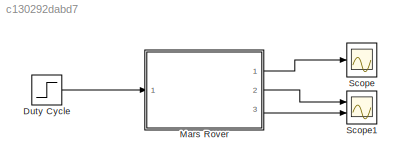
MODEL slx_c130292dabd7
KIND model
CONFIG AbsTol = auto
CONFIG EnableMultiTasking = off
CONFIG FixedStep = auto
CONFIG MaxStep = auto
CONFIG MinStep = auto
CONFIG RelTol = 1e-3
CONFIG SampleTimeConstraint = Unconstrained
CONFIG SolverName = VariableStepAuto
CONFIG StartTime = 0.0
CONFIG StopTime = 10
BLOCK [Step] Duty Cycle
  After = dutyFinal
  Before = dutyInitial
  SampleTime = 0
  Time = stepTime
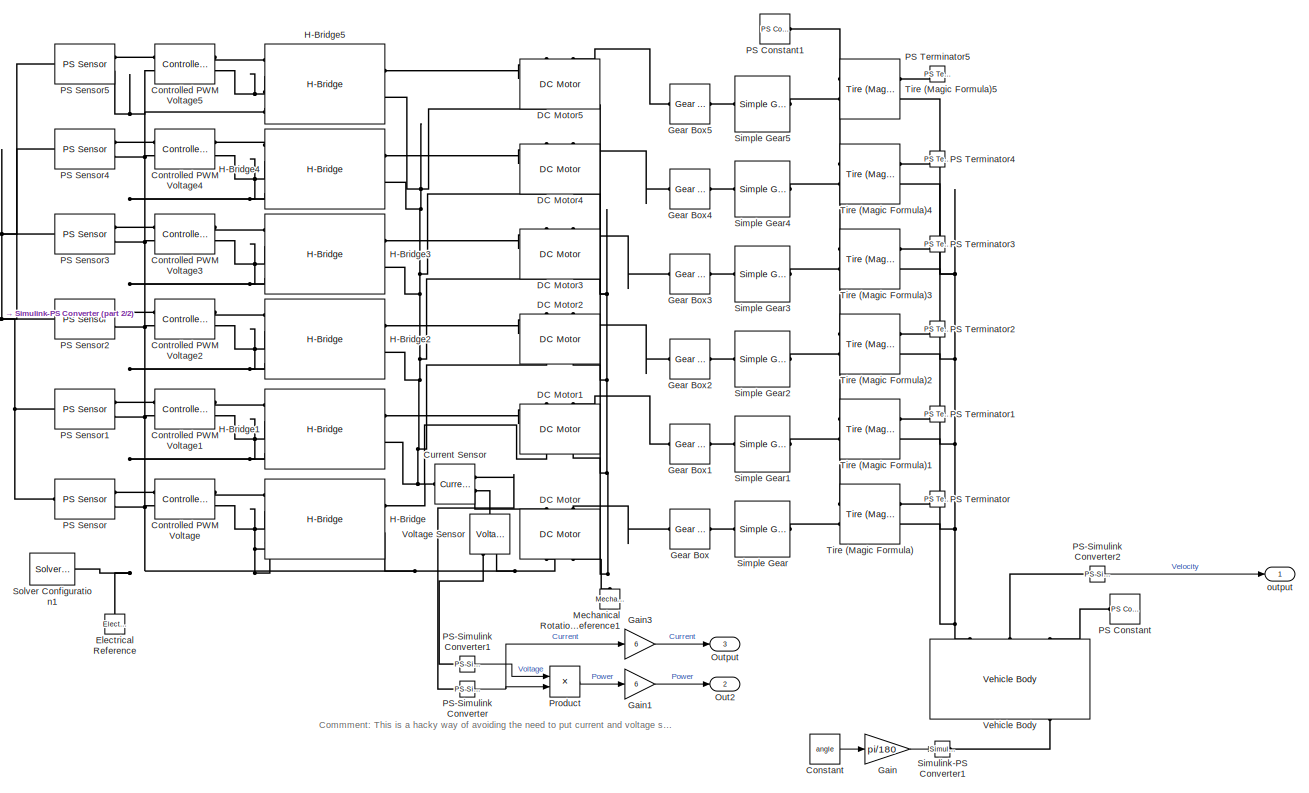
[diagram: Mars Rover - part 1/2, most of the canvas]
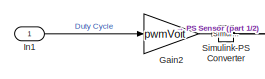
[diagram: Mars Rover - part 2/2, middle left region]
BLOCK [SubSystem] Mars Rover
  Ports = [1, 3]
  RequestExecContextInheritance = off
BLOCK [Constant] Mars Rover/Constant
  Value = angle
BLOCK [Reference] Mars Rover/Controlled PWM Voltage  REF=ee_lib/Integrated Circuits/Controlled PWM
Voltage
  Ports = [0, 0, 0, 0, 0, 2, 2]
  SourceBlock = ee_lib/Integrated Circuits/Controlled PWM\nVoltage
  SourceProductBaseCode = PS
  SourceType = Controlled PWM\nVoltage
BLOCK [Reference] Mars Rover/Controlled PWM Voltage1  REF=ee_lib/Integrated Circuits/Controlled PWM
Voltage
  Ports = [0, 0, 0, 0, 0, 2, 2]
  SourceBlock = ee_lib/Integrated Circuits/Controlled PWM\nVoltage
  SourceProductBaseCode = PS
  SourceType = Controlled PWM\nVoltage
BLOCK [Reference] Mars Rover/Controlled PWM Voltage2  REF=ee_lib/Integrated Circuits/Controlled PWM
Voltage
  Ports = [0, 0, 0, 0, 0, 2, 2]
  SourceBlock = ee_lib/Integrated Circuits/Controlled PWM\nVoltage
  SourceProductBaseCode = PS
  SourceType = Controlled PWM\nVoltage
BLOCK [Reference] Mars Rover/Controlled PWM Voltage3  REF=ee_lib/Integrated Circuits/Controlled PWM
Voltage
  Ports = [0, 0, 0, 0, 0, 2, 2]
  SourceBlock = ee_lib/Integrated Circuits/Controlled PWM\nVoltage
  SourceProductBaseCode = PS
  SourceType = Controlled PWM\nVoltage
BLOCK [Reference] Mars Rover/Controlled PWM Voltage4  REF=ee_lib/Integrated Circuits/Controlled PWM
Voltage
  Ports = [0, 0, 0, 0, 0, 2, 2]
  SourceBlock = ee_lib/Integrated Circuits/Controlled PWM\nVoltage
  SourceProductBaseCode = PS
  SourceType = Controlled PWM\nVoltage
BLOCK [Reference] Mars Rover/Controlled PWM Voltage5  REF=ee_lib/Integrated Circuits/Controlled PWM
Voltage
  Ports = [0, 0, 0, 0, 0, 2, 2]
  SourceBlock = ee_lib/Integrated Circuits/Controlled PWM\nVoltage
  SourceProductBaseCode = PS
  SourceType = Controlled PWM\nVoltage
BLOCK [Reference] Mars Rover/Current Sensor  REF=fl_lib/Electrical/Electrical Sensors/Current Sensor
  Ports = [0, 0, 0, 0, 0, 1, 2]
  SourceBlock = fl_lib/Electrical/Electrical Sensors/Current Sensor
  SourceProductBaseCode = SS
  SourceType = Current Sensor
BLOCK [Reference] Mars Rover/DC Motor  REF=ee_lib/Electromechanical/Brushed Motors/DC Motor
  NameLocation = right
  Ports = [0, 0, 0, 0, 0, 2, 2]
  SourceBlock = ee_lib/Electromechanical/Brushed Motors/DC Motor
  SourceProductBaseCode = PS
  SourceType = DC Motor
BLOCK [Reference] Mars Rover/DC Motor1  REF=ee_lib/Electromechanical/Brushed Motors/DC Motor
  NameLocation = right
  Ports = [0, 0, 0, 0, 0, 2, 2]
  SourceBlock = ee_lib/Electromechanical/Brushed Motors/DC Motor
  SourceProductBaseCode = PS
  SourceType = DC Motor
BLOCK [Reference] Mars Rover/DC Motor2  REF=ee_lib/Electromechanical/Brushed Motors/DC Motor
  NameLocation = right
  Ports = [0, 0, 0, 0, 0, 2, 2]
  SourceBlock = ee_lib/Electromechanical/Brushed Motors/DC Motor
  SourceProductBaseCode = PS
  SourceType = DC Motor
BLOCK [Reference] Mars Rover/DC Motor3  REF=ee_lib/Electromechanical/Brushed Motors/DC Motor
  NameLocation = right
  Ports = [0, 0, 0, 0, 0, 2, 2]
  SourceBlock = ee_lib/Electromechanical/Brushed Motors/DC Motor
  SourceProductBaseCode = PS
  SourceType = DC Motor
BLOCK [Reference] Mars Rover/DC Motor4  REF=ee_lib/Electromechanical/Brushed Motors/DC Motor
  NameLocation = right
  Ports = [0, 0, 0, 0, 0, 2, 2]
  SourceBlock = ee_lib/Electromechanical/Brushed Motors/DC Motor
  SourceProductBaseCode = PS
  SourceType = DC Motor
BLOCK [Reference] Mars Rover/DC Motor5  REF=ee_lib/Electromechanical/Brushed Motors/DC Motor
  NameLocation = right
  Ports = [0, 0, 0, 0, 0, 2, 2]
  SourceBlock = ee_lib/Electromechanical/Brushed Motors/DC Motor
  SourceProductBaseCode = PS
  SourceType = DC Motor
BLOCK [Reference] Mars Rover/Electrical Reference  REF=fl_lib/Electrical/Electrical Elements/Electrical Reference
  NameLocation = right
  Ports = [0, 0, 0, 0, 0, 1]
  SourceBlock = fl_lib/Electrical/Electrical Elements/Electrical Reference
  SourceProductBaseCode = SS
  SourceType = Electrical Reference
BLOCK [Gain] Mars Rover/Gain
  Gain = pi/180
BLOCK [Gain] Mars Rover/Gain1
  Gain = 6
BLOCK [Gain] Mars Rover/Gain2
  Gain = pwmVolt
BLOCK [Gain] Mars Rover/Gain3
  Gain = 6
BLOCK [Reference] Mars Rover/Gear Box  REF=fl_lib/Mechanical/Mechanisms/Gear Box
  Ports = [0, 0, 0, 0, 0, 1, 1]
  SourceBlock = fl_lib/Mechanical/Mechanisms/Gear Box
  SourceProductBaseCode = SS
  SourceType = Gear Box
BLOCK [Reference] Mars Rover/Gear Box1  REF=fl_lib/Mechanical/Mechanisms/Gear Box
  Ports = [0, 0, 0, 0, 0, 1, 1]
  SourceBlock = fl_lib/Mechanical/Mechanisms/Gear Box
  SourceProductBaseCode = SS
  SourceType = Gear Box
BLOCK [Reference] Mars Rover/Gear Box2  REF=fl_lib/Mechanical/Mechanisms/Gear Box
  Ports = [0, 0, 0, 0, 0, 1, 1]
  SourceBlock = fl_lib/Mechanical/Mechanisms/Gear Box
  SourceProductBaseCode = SS
  SourceType = Gear Box
BLOCK [Reference] Mars Rover/Gear Box3  REF=fl_lib/Mechanical/Mechanisms/Gear Box
  Ports = [0, 0, 0, 0, 0, 1, 1]
  SourceBlock = fl_lib/Mechanical/Mechanisms/Gear Box
  SourceProductBaseCode = SS
  SourceType = Gear Box
BLOCK [Reference] Mars Rover/Gear Box4  REF=fl_lib/Mechanical/Mechanisms/Gear Box
  Ports = [0, 0, 0, 0, 0, 1, 1]
  SourceBlock = fl_lib/Mechanical/Mechanisms/Gear Box
  SourceProductBaseCode = SS
  SourceType = Gear Box
BLOCK [Reference] Mars Rover/Gear Box5  REF=fl_lib/Mechanical/Mechanisms/Gear Box
  Ports = [0, 0, 0, 0, 0, 1, 1]
  SourceBlock = fl_lib/Mechanical/Mechanisms/Gear Box
  SourceProductBaseCode = SS
  SourceType = Gear Box
BLOCK [Reference] Mars Rover/H-Bridge  REF=ee_lib/Semiconductors &
Converters/Converters/H-Bridge
  Ports = [0, 0, 0, 0, 0, 4, 2]
  SourceBlock = ee_lib/Semiconductors &\nConverters/Converters/H-Bridge
  SourceProductBaseCode = PS
  SourceType = H-Bridge
BLOCK [Reference] Mars Rover/H-Bridge1  REF=ee_lib/Semiconductors &
Converters/Converters/H-Bridge
  Ports = [0, 0, 0, 0, 0, 4, 2]
  SourceBlock = ee_lib/Semiconductors &\nConverters/Converters/H-Bridge
  SourceProductBaseCode = PS
  SourceType = H-Bridge
BLOCK [Reference] Mars Rover/H-Bridge2  REF=ee_lib/Semiconductors &
Converters/Converters/H-Bridge
  Ports = [0, 0, 0, 0, 0, 4, 2]
  SourceBlock = ee_lib/Semiconductors &\nConverters/Converters/H-Bridge
  SourceProductBaseCode = PS
  SourceType = H-Bridge
BLOCK [Reference] Mars Rover/H-Bridge3  REF=ee_lib/Semiconductors &
Converters/Converters/H-Bridge
  Ports = [0, 0, 0, 0, 0, 4, 2]
  SourceBlock = ee_lib/Semiconductors &\nConverters/Converters/H-Bridge
  SourceProductBaseCode = PS
  SourceType = H-Bridge
BLOCK [Reference] Mars Rover/H-Bridge4  REF=ee_lib/Semiconductors &
Converters/Converters/H-Bridge
  Ports = [0, 0, 0, 0, 0, 4, 2]
  SourceBlock = ee_lib/Semiconductors &\nConverters/Converters/H-Bridge
  SourceProductBaseCode = PS
  SourceType = H-Bridge
BLOCK [Reference] Mars Rover/H-Bridge5  REF=ee_lib/Semiconductors &
Converters/Converters/H-Bridge
  Ports = [0, 0, 0, 0, 0, 4, 2]
  SourceBlock = ee_lib/Semiconductors &\nConverters/Converters/H-Bridge
  SourceProductBaseCode = PS
  SourceType = H-Bridge
BLOCK [Inport] Mars Rover/In1
  IconDisplay = Signal name
BLOCK [Reference] Mars Rover/Mechanical Rotational Reference1  REF=fl_lib/Mechanical/Rotational Elements/Mechanical
Rotational Reference
  NameLocation = right
  Ports = [0, 0, 0, 0, 0, 1]
  SourceBlock = fl_lib/Mechanical/Rotational Elements/Mechanical\nRotational Reference
  SourceProductBaseCode = SS
  SourceType = Mechanical\nRotational Reference
BLOCK [Outport] Mars Rover/Out2
  IconDisplay = Signal name
  Port = 2
BLOCK [Outport] Mars Rover/Output
  IconDisplay = Signal name
  Port = 3
BLOCK [Reference] Mars Rover/PS Constant  REF=fl_lib/Physical Signals/Sources/PS Constant
  Ports = [0, 0, 0, 0, 0, 0, 1]
  SourceBlock = fl_lib/Physical Signals/Sources/PS Constant
  SourceProductBaseCode = SS
  SourceType = PS Constant
BLOCK [Reference] Mars Rover/PS Constant1  REF=fl_lib/Physical Signals/Sources/PS Constant
  Ports = [0, 0, 0, 0, 0, 0, 1]
  SourceBlock = fl_lib/Physical Signals/Sources/PS Constant
  SourceProductBaseCode = SS
  SourceType = PS Constant
BLOCK [Reference] Mars Rover/PS Sensor  REF=ee_lib/Sensors &
Transducers/PS Sensor
  Ports = [0, 0, 0, 0, 0, 1, 2]
  SourceBlock = ee_lib/Sensors &\nTransducers/PS Sensor
  SourceProductBaseCode = PS
  SourceType = PS Sensor
BLOCK [Reference] Mars Rover/PS Sensor1  REF=ee_lib/Sensors &
Transducers/PS Sensor
  Ports = [0, 0, 0, 0, 0, 1, 2]
  SourceBlock = ee_lib/Sensors &\nTransducers/PS Sensor
  SourceProductBaseCode = PS
  SourceType = PS Sensor
BLOCK [Reference] Mars Rover/PS Sensor2  REF=ee_lib/Sensors &
Transducers/PS Sensor
  Ports = [0, 0, 0, 0, 0, 1, 2]
  SourceBlock = ee_lib/Sensors &\nTransducers/PS Sensor
  SourceProductBaseCode = PS
  SourceType = PS Sensor
BLOCK [Reference] Mars Rover/PS Sensor3  REF=ee_lib/Sensors &
Transducers/PS Sensor
  Ports = [0, 0, 0, 0, 0, 1, 2]
  SourceBlock = ee_lib/Sensors &\nTransducers/PS Sensor
  SourceProductBaseCode = PS
  SourceType = PS Sensor
BLOCK [Reference] Mars Rover/PS Sensor4  REF=ee_lib/Sensors &
Transducers/PS Sensor
  Ports = [0, 0, 0, 0, 0, 1, 2]
  SourceBlock = ee_lib/Sensors &\nTransducers/PS Sensor
  SourceProductBaseCode = PS
  SourceType = PS Sensor
BLOCK [Reference] Mars Rover/PS Sensor5  REF=ee_lib/Sensors &
Transducers/PS Sensor
  Ports = [0, 0, 0, 0, 0, 1, 2]
  SourceBlock = ee_lib/Sensors &\nTransducers/PS Sensor
  SourceProductBaseCode = PS
  SourceType = PS Sensor
BLOCK [Reference] Mars Rover/PS Terminator  REF=fl_lib/Physical Signals/Sinks/PS Terminator
  Ports = [0, 0, 0, 0, 0, 1]
  SourceBlock = fl_lib/Physical Signals/Sinks/PS Terminator
  SourceProductBaseCode = SS
  SourceType = PS Terminator
BLOCK [Reference] Mars Rover/PS Terminator1  REF=fl_lib/Physical Signals/Sinks/PS Terminator
  Ports = [0, 0, 0, 0, 0, 1]
  SourceBlock = fl_lib/Physical Signals/Sinks/PS Terminator
  SourceProductBaseCode = SS
  SourceType = PS Terminator
BLOCK [Reference] Mars Rover/PS Terminator2  REF=fl_lib/Physical Signals/Sinks/PS Terminator
  Ports = [0, 0, 0, 0, 0, 1]
  SourceBlock = fl_lib/Physical Signals/Sinks/PS Terminator
  SourceProductBaseCode = SS
  SourceType = PS Terminator
BLOCK [Reference] Mars Rover/PS Terminator3  REF=fl_lib/Physical Signals/Sinks/PS Terminator
  Ports = [0, 0, 0, 0, 0, 1]
  SourceBlock = fl_lib/Physical Signals/Sinks/PS Terminator
  SourceProductBaseCode = SS
  SourceType = PS Terminator
BLOCK [Reference] Mars Rover/PS Terminator4  REF=fl_lib/Physical Signals/Sinks/PS Terminator
  Ports = [0, 0, 0, 0, 0, 1]
  SourceBlock = fl_lib/Physical Signals/Sinks/PS Terminator
  SourceProductBaseCode = SS
  SourceType = PS Terminator
BLOCK [Reference] Mars Rover/PS Terminator5  REF=fl_lib/Physical Signals/Sinks/PS Terminator
  Ports = [0, 0, 0, 0, 0, 1]
  SourceBlock = fl_lib/Physical Signals/Sinks/PS Terminator
  SourceProductBaseCode = SS
  SourceType = PS Terminator
BLOCK [Reference] Mars Rover/PS-Simulink Converter  REF=nesl_utility/PS-Simulink
Converter
  Ports = [0, 1, 0, 0, 0, 1]
  SourceBlock = nesl_utility/PS-Simulink\nConverter
  SourceProductBaseCode = SS
  SourceType = PS-Simulink\nConverter
BLOCK [Reference] Mars Rover/PS-Simulink Converter1  REF=nesl_utility/PS-Simulink
Converter
  Ports = [0, 1, 0, 0, 0, 1]
  SourceBlock = nesl_utility/PS-Simulink\nConverter
  SourceProductBaseCode = SS
  SourceType = PS-Simulink\nConverter
BLOCK [Reference] Mars Rover/PS-Simulink Converter2  REF=nesl_utility/PS-Simulink
Converter
  Ports = [0, 1, 0, 0, 0, 1]
  SourceBlock = nesl_utility/PS-Simulink\nConverter
  SourceProductBaseCode = SS
  SourceType = PS-Simulink\nConverter
BLOCK [Product] Mars Rover/Product
  Ports = [2, 1]
BLOCK [Reference] Mars Rover/Simple Gear  REF=sdl_lib/Gears/Simple Gear
  Ports = [0, 0, 0, 0, 0, 1, 1]
  SourceBlock = sdl_lib/Gears/Simple Gear
  SourceProductBaseCode = LD
  SourceType = Simple Gear
BLOCK [Reference] Mars Rover/Simple Gear1  REF=sdl_lib/Gears/Simple Gear
  Ports = [0, 0, 0, 0, 0, 1, 1]
  SourceBlock = sdl_lib/Gears/Simple Gear
  SourceProductBaseCode = LD
  SourceType = Simple Gear
BLOCK [Reference] Mars Rover/Simple Gear2  REF=sdl_lib/Gears/Simple Gear
  Ports = [0, 0, 0, 0, 0, 1, 1]
  SourceBlock = sdl_lib/Gears/Simple Gear
  SourceProductBaseCode = LD
  SourceType = Simple Gear
BLOCK [Reference] Mars Rover/Simple Gear3  REF=sdl_lib/Gears/Simple Gear
  Ports = [0, 0, 0, 0, 0, 1, 1]
  SourceBlock = sdl_lib/Gears/Simple Gear
  SourceProductBaseCode = LD
  SourceType = Simple Gear
BLOCK [Reference] Mars Rover/Simple Gear4  REF=sdl_lib/Gears/Simple Gear
  Ports = [0, 0, 0, 0, 0, 1, 1]
  SourceBlock = sdl_lib/Gears/Simple Gear
  SourceProductBaseCode = LD
  SourceType = Simple Gear
BLOCK [Reference] Mars Rover/Simple Gear5  REF=sdl_lib/Gears/Simple Gear
  Ports = [0, 0, 0, 0, 0, 1, 1]
  SourceBlock = sdl_lib/Gears/Simple Gear
  SourceProductBaseCode = LD
  SourceType = Simple Gear
BLOCK [Reference] Mars Rover/Simulink-PS Converter  REF=nesl_utility/Simulink-PS
Converter
  Ports = [1, 0, 0, 0, 0, 0, 1]
  SourceBlock = nesl_utility/Simulink-PS\nConverter
  SourceProductBaseCode = SS
  SourceType = Simulink-PS\nConverter
BLOCK [Reference] Mars Rover/Simulink-PS Converter1  REF=nesl_utility/Simulink-PS
Converter
  Ports = [1, 0, 0, 0, 0, 0, 1]
  SourceBlock = nesl_utility/Simulink-PS\nConverter
  SourceProductBaseCode = SS
  SourceType = Simulink-PS\nConverter
BLOCK [Reference] Mars Rover/Solver Configuration1  REF=nesl_utility/Solver
Configuration
  Ports = [0, 0, 0, 0, 0, 0, 1]
  SourceBlock = nesl_utility/Solver\nConfiguration
  SourceProductBaseCode = SS
  SourceType = Solver\nConfiguration
BLOCK [Reference] Mars Rover/Tire (Magic Formula)  REF=sdl_lib/Tires & Vehicles/Tire (Magic Formula)
  Ports = [0, 0, 0, 0, 0, 2, 2]
  SourceBlock = sdl_lib/Tires & Vehicles/Tire (Magic Formula)
  SourceProductBaseCode = LD
  SourceType = Tire (Magic Formula)
BLOCK [Reference] Mars Rover/Tire (Magic Formula)1  REF=sdl_lib/Tires & Vehicles/Tire (Magic Formula)
  Ports = [0, 0, 0, 0, 0, 2, 2]
  SourceBlock = sdl_lib/Tires & Vehicles/Tire (Magic Formula)
  SourceProductBaseCode = LD
  SourceType = Tire (Magic Formula)
BLOCK [Reference] Mars Rover/Tire (Magic Formula)2  REF=sdl_lib/Tires & Vehicles/Tire (Magic Formula)
  Ports = [0, 0, 0, 0, 0, 2, 2]
  SourceBlock = sdl_lib/Tires & Vehicles/Tire (Magic Formula)
  SourceProductBaseCode = LD
  SourceType = Tire (Magic Formula)
BLOCK [Reference] Mars Rover/Tire (Magic Formula)3  REF=sdl_lib/Tires & Vehicles/Tire (Magic Formula)
  Ports = [0, 0, 0, 0, 0, 2, 2]
  SourceBlock = sdl_lib/Tires & Vehicles/Tire (Magic Formula)
  SourceProductBaseCode = LD
  SourceType = Tire (Magic Formula)
BLOCK [Reference] Mars Rover/Tire (Magic Formula)4  REF=sdl_lib/Tires & Vehicles/Tire (Magic Formula)
  Ports = [0, 0, 0, 0, 0, 2, 2]
  SourceBlock = sdl_lib/Tires & Vehicles/Tire (Magic Formula)
  SourceProductBaseCode = LD
  SourceType = Tire (Magic Formula)
BLOCK [Reference] Mars Rover/Tire (Magic Formula)5  REF=sdl_lib/Tires & Vehicles/Tire (Magic Formula)
  Ports = [0, 0, 0, 0, 0, 2, 2]
  SourceBlock = sdl_lib/Tires & Vehicles/Tire (Magic Formula)
  SourceProductBaseCode = LD
  SourceType = Tire (Magic Formula)
BLOCK [Reference] Mars Rover/Vehicle Body  REF=sdl_lib/Tires & Vehicles/Vehicle Body
  NameLocation = right
  Ports = [0, 0, 0, 0, 0, 3, 3]
  SourceBlock = sdl_lib/Tires & Vehicles/Vehicle Body
  SourceProductBaseCode = LD
  SourceType = Vehicle Body
BLOCK [Reference] Mars Rover/Voltage Sensor  REF=fl_lib/Electrical/Electrical Sensors/Voltage Sensor
  NameLocation = right
  Ports = [0, 0, 0, 0, 0, 1, 2]
  SourceBlock = fl_lib/Electrical/Electrical Sensors/Voltage Sensor
  SourceProductBaseCode = SS
  SourceType = Voltage Sensor
BLOCK [Outport] Mars Rover/output
  IconDisplay = Signal name
BLOCK [Scope] Scope
  Floating = off
  NumInputPorts = 1
  Ports = [1]
  ScopeSpecificationString = Simulink.scopes.TimeScopeBlockCfg('CurrentConfiguration', extmgr.ConfigurationSet(extmgr.Configuration('Core','General UI',true),extmgr.Configuration('Core','Source UI',true),extmgr.Configuration('Sources','WiredSimulink',true),extmgr.Configuration('Visuals','Time Domain',true,'SerializedDisplays',{struct('MinYLimReal','-1.0328','MaxYLimReal','9.03381','YLabelReal','','MinYLimMag','0.00000','MaxYL...<+1863ch>
BLOCK [Scope] Scope1
  Floating = off
  NumInputPorts = 2
  Ports = [2]
  ScopeSpecificationString = Simulink.scopes.TimeScopeBlockCfg('CurrentConfiguration', extmgr.ConfigurationSet(extmgr.Configuration('Core','General UI',true),extmgr.Configuration('Core','Source UI',true),extmgr.Configuration('Sources','WiredSimulink',true,'DataLoggingVariableName','ScopeData1'),extmgr.Configuration('Visuals','Time Domain',true),extmgr.Configuration('Tools','Plot Navigation',true),extmgr.Configuration('Tools',...<+40ch>
ANNOTATION Mars Rover: Commment: This is a hacky way of avoiding the need to put current and voltage sensors on every motor. Instead we can just multiply the consumption of one motor by 6 since they are all operating the exact same
LINE Duty Cycle:1 -> Mars Rover:1
LINE Mars Rover/Constant:1 -> Mars Rover/Gain:1
LINE Mars Rover/Gain1:1 -> Mars Rover/Out2:1
LINE Mars Rover/Gain2:1 -> Mars Rover/Simulink-PS Converter:1
LINE Mars Rover/Gain3:1 -> Mars Rover/Output:1
LINE Mars Rover/Gain:1 -> Mars Rover/Simulink-PS Converter1:1
LINE Mars Rover/In1:1 -> Mars Rover/Gain2:1
LINE Mars Rover/PS-Simulink Converter1:1 -> Mars Rover/Product:1
LINE Mars Rover/PS-Simulink Converter2:1 -> Mars Rover/output:1
NET Mars Rover/PS-Simulink Converter:1 -> Mars Rover/Gain3:1, Mars Rover/Product:2
LINE Mars Rover/Product:1 -> Mars Rover/Gain1:1
LINE Mars Rover:1 -> Scope:1
LINE Mars Rover:2 -> Scope1:1
LINE Mars Rover:3 -> Scope1:2
PLINE Mars Rover/Controlled PWM Voltage1:LConn1 -- Mars Rover/PS Sensor1:RConn1
PNET net1: Mars Rover/Controlled PWM Voltage1:LConn2 -- Mars Rover/Controlled PWM Voltage1:RConn2 -- Mars Rover/Controlled PWM Voltage2:LConn2 -- Mars Rover/Controlled PWM Voltage2:RConn2 -- Mars Rover/Controlled PWM Voltage3:LConn2 -- Mars Rover/Controlled PWM Voltage3:RConn2 -- Mars Rover/Controlled PWM Voltage4:LConn2 -- Mars Rover/Controlled PWM Voltage4:RConn2 -- Mars Rover/Controlled PWM Voltage5:LConn2 -- Mars Rover/Controlled PWM Voltage5:RConn2 -- Mars Rover/Controlled PWM Voltage:LConn2 -- Mars Rover/Controlled PWM Voltage:RConn2 -- Mars Rover/DC Motor:RConn1 -- Mars Rover/Electrical Reference:LConn1 -- Mars Rover/H-Bridge1:LConn2 -- Mars Rover/H-Bridge1:LConn3 -- Mars Rover/H-Bridge1:LConn4 -- Mars Rover/H-Bridge2:LConn2 -- Mars Rover/H-Bridge2:LConn3 -- Mars Rover/H-Bridge2:LConn4 -- Mars Rover/H-Bridge3:LConn2 -- Mars Rover/H-Bridge3:LConn3 -- Mars Rover/H-Bridge3:LConn4 -- Mars Rover/H-Bridge4:LConn2 -- Mars Rover/H-Bridge4:LConn3 -- Mars Rover/H-Bridge4:LConn4 -- Mars Rover/H-Bridge5:LConn2 -- Mars Rover/H-Bridge5:LConn3 -- Mars Rover/H-Bridge5:LConn4 -- Mars Rover/H-Bridge:LConn2 -- Mars Rover/H-Bridge:LConn3 -- Mars Rover/H-Bridge:LConn4 -- Mars Rover/H-Bridge:RConn2 -- Mars Rover/PS Sensor1:RConn2 -- Mars Rover/PS Sensor2:RConn2 -- Mars Rover/PS Sensor3:RConn2 -- Mars Rover/PS Sensor4:RConn2 -- Mars Rover/PS Sensor5:RConn2 -- Mars Rover/PS Sensor:RConn2 -- Mars Rover/Solver Configuration1:RConn1 -- Mars Rover/Voltage Sensor:RConn2
PLINE Mars Rover/Controlled PWM Voltage1:RConn1 -- Mars Rover/H-Bridge1:LConn1
PLINE Mars Rover/Controlled PWM Voltage2:LConn1 -- Mars Rover/PS Sensor2:RConn1
PLINE Mars Rover/Controlled PWM Voltage2:RConn1 -- Mars Rover/H-Bridge2:LConn1
PLINE Mars Rover/Controlled PWM Voltage3:LConn1 -- Mars Rover/PS Sensor3:RConn1
PLINE Mars Rover/Controlled PWM Voltage3:RConn1 -- Mars Rover/H-Bridge3:LConn1
PLINE Mars Rover/Controlled PWM Voltage4:LConn1 -- Mars Rover/PS Sensor4:RConn1
PLINE Mars Rover/Controlled PWM Voltage4:RConn1 -- Mars Rover/H-Bridge4:LConn1
PLINE Mars Rover/Controlled PWM Voltage5:LConn1 -- Mars Rover/PS Sensor5:RConn1
PLINE Mars Rover/Controlled PWM Voltage5:RConn1 -- Mars Rover/H-Bridge5:LConn1
PLINE Mars Rover/Controlled PWM Voltage:LConn1 -- Mars Rover/PS Sensor:RConn1
PLINE Mars Rover/Controlled PWM Voltage:RConn1 -- Mars Rover/H-Bridge:LConn1
PNET net2: Mars Rover/Current Sensor:LConn1 -- Mars Rover/DC Motor1:RConn1 -- Mars Rover/DC Motor2:RConn1 -- Mars Rover/DC Motor3:RConn1 -- Mars Rover/DC Motor4:RConn1 -- Mars Rover/DC Motor5:RConn1 -- Mars Rover/H-Bridge1:RConn2 -- Mars Rover/H-Bridge2:RConn2 -- Mars Rover/H-Bridge3:RConn2 -- Mars Rover/H-Bridge4:RConn2 -- Mars Rover/H-Bridge5:RConn2 -- Mars Rover/H-Bridge:RConn1
PLINE Mars Rover/Current Sensor:RConn1 -- Mars Rover/PS-Simulink Converter:LConn1
PNET net3: Mars Rover/Current Sensor:RConn2 -- Mars Rover/DC Motor:LConn1 -- Mars Rover/Voltage Sensor:LConn1
PLINE Mars Rover/DC Motor1:LConn1 -- Mars Rover/H-Bridge1:RConn1
PLINE Mars Rover/DC Motor1:LConn2 -- Mars Rover/Gear Box1:LConn1
PNET net4: Mars Rover/DC Motor1:RConn2 -- Mars Rover/DC Motor2:RConn2 -- Mars Rover/DC Motor3:RConn2 -- Mars Rover/DC Motor4:RConn2 -- Mars Rover/DC Motor5:RConn2 -- Mars Rover/DC Motor:RConn2 -- Mars Rover/Mechanical Rotational Reference1:LConn1
PLINE Mars Rover/DC Motor2:LConn1 -- Mars Rover/H-Bridge2:RConn1
PLINE Mars Rover/DC Motor2:LConn2 -- Mars Rover/Gear Box2:LConn1
PLINE Mars Rover/DC Motor3:LConn1 -- Mars Rover/H-Bridge3:RConn1
PLINE Mars Rover/DC Motor3:LConn2 -- Mars Rover/Gear Box3:LConn1
PLINE Mars Rover/DC Motor4:LConn1 -- Mars Rover/H-Bridge4:RConn1
PLINE Mars Rover/DC Motor4:LConn2 -- Mars Rover/Gear Box4:LConn1
PLINE Mars Rover/DC Motor5:LConn1 -- Mars Rover/H-Bridge5:RConn1
PLINE Mars Rover/DC Motor5:LConn2 -- Mars Rover/Gear Box5:LConn1
PLINE Mars Rover/DC Motor:LConn2 -- Mars Rover/Gear Box:LConn1
PLINE Mars Rover/Gear Box1:RConn1 -- Mars Rover/Simple Gear1:LConn1
PLINE Mars Rover/Gear Box2:RConn1 -- Mars Rover/Simple Gear2:LConn1
PLINE Mars Rover/Gear Box3:RConn1 -- Mars Rover/Simple Gear3:LConn1
PLINE Mars Rover/Gear Box4:RConn1 -- Mars Rover/Simple Gear4:LConn1
PLINE Mars Rover/Gear Box5:RConn1 -- Mars Rover/Simple Gear5:LConn1
PLINE Mars Rover/Gear Box:RConn1 -- Mars Rover/Simple Gear:LConn1
PNET net5: Mars Rover/PS Constant1:RConn1 -- Mars Rover/Tire (Magic Formula)1:LConn1 -- Mars Rover/Tire (Magic Formula)2:LConn1 -- Mars Rover/Tire (Magic Formula)3:LConn1 -- Mars Rover/Tire (Magic Formula)4:LConn1 -- Mars Rover/Tire (Magic Formula)5:LConn1 -- Mars Rover/Tire (Magic Formula):LConn1
PLINE Mars Rover/PS Constant:RConn1 -- Mars Rover/Vehicle Body:LConn3
PNET net6: Mars Rover/PS Sensor1:LConn1 -- Mars Rover/PS Sensor2:LConn1 -- Mars Rover/PS Sensor3:LConn1 -- Mars Rover/PS Sensor4:LConn1 -- Mars Rover/PS Sensor5:LConn1 -- Mars Rover/PS Sensor:LConn1 -- Mars Rover/Simulink-PS Converter:RConn1
PLINE Mars Rover/PS Terminator1:LConn1 -- Mars Rover/Tire (Magic Formula)1:RConn1
PLINE Mars Rover/PS Terminator2:LConn1 -- Mars Rover/Tire (Magic Formula)2:RConn1
PLINE Mars Rover/PS Terminator3:LConn1 -- Mars Rover/Tire (Magic Formula)3:RConn1
PLINE Mars Rover/PS Terminator4:LConn1 -- Mars Rover/Tire (Magic Formula)4:RConn1
PLINE Mars Rover/PS Terminator5:LConn1 -- Mars Rover/Tire (Magic Formula)5:RConn1
PLINE Mars Rover/PS Terminator:LConn1 -- Mars Rover/Tire (Magic Formula):RConn1
PLINE Mars Rover/PS-Simulink Converter1:LConn1 -- Mars Rover/Voltage Sensor:RConn1
PLINE Mars Rover/PS-Simulink Converter2:LConn1 -- Mars Rover/Vehicle Body:LConn2
PLINE Mars Rover/Simple Gear1:RConn1 -- Mars Rover/Tire (Magic Formula)1:LConn2
PLINE Mars Rover/Simple Gear2:RConn1 -- Mars Rover/Tire (Magic Formula)2:LConn2
PLINE Mars Rover/Simple Gear3:RConn1 -- Mars Rover/Tire (Magic Formula)3:LConn2
PLINE Mars Rover/Simple Gear4:RConn1 -- Mars Rover/Tire (Magic Formula)4:LConn2
PLINE Mars Rover/Simple Gear5:RConn1 -- Mars Rover/Tire (Magic Formula)5:LConn2
PLINE Mars Rover/Simple Gear:RConn1 -- Mars Rover/Tire (Magic Formula):LConn2
PLINE Mars Rover/Simulink-PS Converter1:RConn1 -- Mars Rover/Vehicle Body:RConn3
PNET net7: Mars Rover/Tire (Magic Formula)1:RConn2 -- Mars Rover/Tire (Magic Formula)2:RConn2 -- Mars Rover/Tire (Magic Formula)3:RConn2 -- Mars Rover/Tire (Magic Formula)4:RConn2 -- Mars Rover/Tire (Magic Formula)5:RConn2 -- Mars Rover/Tire (Magic Formula):RConn2 -- Mars Rover/Vehicle Body:LConn1
note: NET lines group one-source signal fan-out (src -> all destinations, sorted); 1:1 wires keep LINE; PNET lines group multi-terminal physical nets as a canonical sorted terminal list (undirected conserving connections); 2-terminal nets keep the pairwise PLINE form
